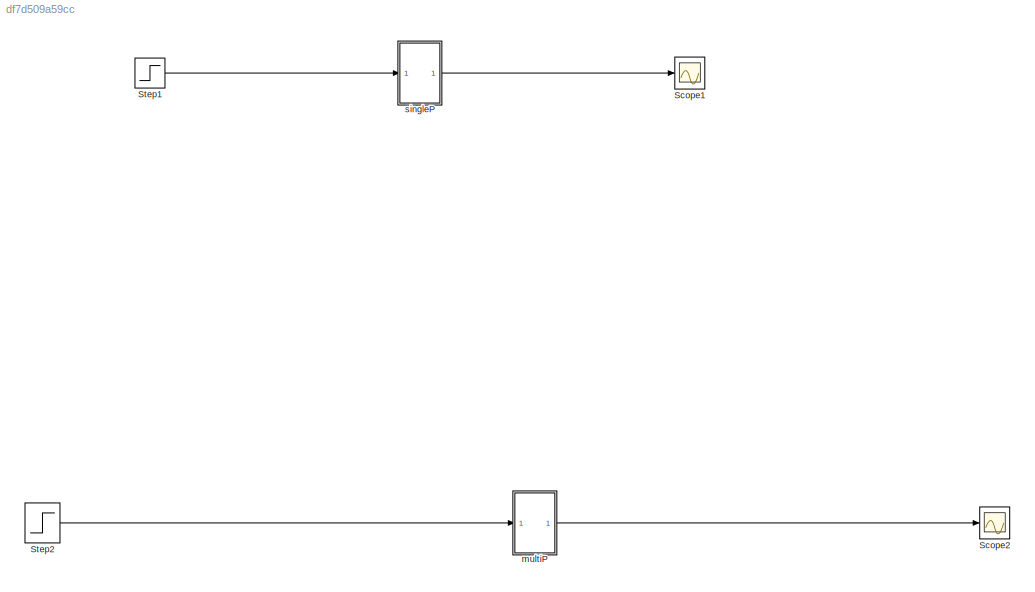
MODEL slx_df7d509a59cc
KIND model
CONFIG AbsTol = auto
CONFIG EnableMultiTasking = off
CONFIG FixedStep = auto
CONFIG MaxStep = auto
CONFIG MinStep = auto
CONFIG RelTol = 1e-3
CONFIG SampleTimeConstraint = Unconstrained
CONFIG SolverName = VariableStepAuto
CONFIG StartTime = 0.0
CONFIG StopTime = 10.0
BLOCK [Scope] Scope1
  Floating = off
  NumInputPorts = 1
  ScopeSpecificationString = Simulink.scopes.TimeScopeBlockCfg('CurrentConfiguration', extmgr.ConfigurationSet(extmgr.Configuration('Core','General UI',true),extmgr.Configuration('Core','Source UI',true),extmgr.Configuration('Sources','WiredSimulink',true,'DataLoggingVariableName','ScopeData2'),extmgr.Configuration('Visuals','Time Domain',true,'SerializedDisplays',{struct('MinYLimReal','-0.13505','MaxYLimReal','1.21541','YLab...<+1395ch>
BLOCK [Scope] Scope2
  Floating = off
  NumInputPorts = 1
  ScopeSpecificationString = Simulink.scopes.TimeScopeBlockCfg('CurrentConfiguration', extmgr.ConfigurationSet(extmgr.Configuration('Core','General UI',true),extmgr.Configuration('Core','Source UI',true),extmgr.Configuration('Sources','WiredSimulink',true,'DataLoggingVariableName','ScopeData1'),extmgr.Configuration('Visuals','Time Domain',true,'SerializedDisplays',{struct('MinYLimReal','-0.1452','MaxYLimReal','1.30677','YLabe...<+1392ch>
BLOCK [Step] Step1
  SampleTime = 0
BLOCK [Step] Step2
  SampleTime = 0
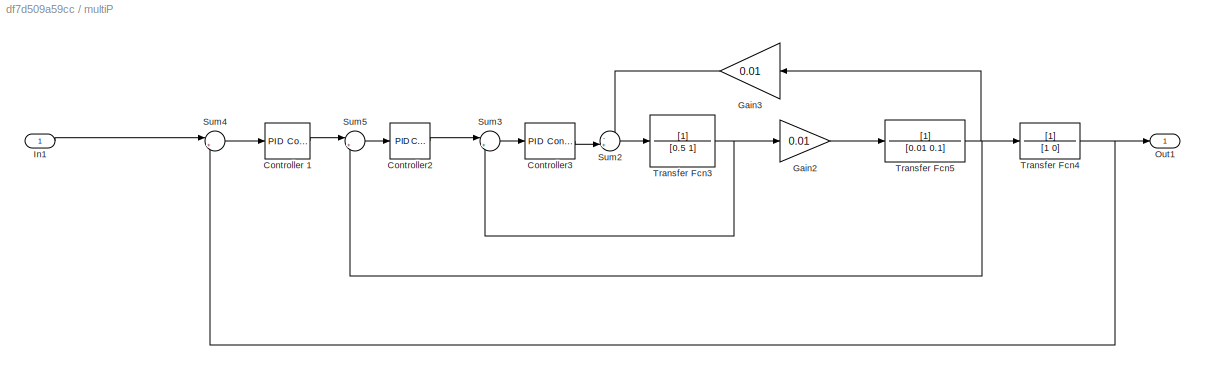
BLOCK [SubSystem] multiP
BLOCK [Reference] multiP/Controller 1  REF=slpidlib/PID Controller
  LibrarySourceBlock = simulink/Continuous/PID Controller
  SourceBlock = slpidlib/PID Controller
  SourceType = PID 1dof
BLOCK [Reference] multiP/Controller2  REF=slpidlib/PID Controller
  LibrarySourceBlock = simulink/Continuous/PID Controller
  SourceBlock = slpidlib/PID Controller
  SourceType = PID 1dof
BLOCK [Reference] multiP/Controller3  REF=slpidlib/PID Controller
  LibrarySourceBlock = simulink/Continuous/PID Controller
  SourceBlock = slpidlib/PID Controller
  SourceType = PID 1dof
BLOCK [Gain] multiP/Gain2
  Gain = 0.01
BLOCK [Gain] multiP/Gain3
  Gain = 0.01
BLOCK [Inport] multiP/In1
BLOCK [Outport] multiP/Out1
BLOCK [Sum] multiP/Sum2
  Inputs = -+|
BLOCK [Sum] multiP/Sum3
  Inputs = |+-
BLOCK [Sum] multiP/Sum4
  Inputs = |+-
BLOCK [Sum] multiP/Sum5
  Inputs = |+-
BLOCK [TransferFcn] multiP/Transfer Fcn3
  Denominator = [0.5 1]
BLOCK [TransferFcn] multiP/Transfer Fcn4
  Denominator = [1 0]
BLOCK [TransferFcn] multiP/Transfer Fcn5
  Denominator = [0.01 0.1]
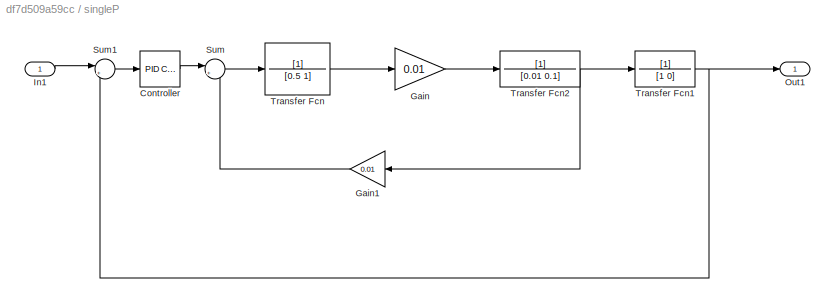
BLOCK [SubSystem] singleP
BLOCK [Reference] singleP/ Controller  REF=slpidlib/PID Controller
  LibrarySourceBlock = simulink/Continuous/PID Controller
  SourceBlock = slpidlib/PID Controller
  SourceType = PID 1dof
BLOCK [Gain] singleP/Gain
  Gain = 0.01
BLOCK [Gain] singleP/Gain1
  Gain = 0.01
BLOCK [Inport] singleP/In1
BLOCK [Outport] singleP/Out1
BLOCK [Sum] singleP/Sum
  Inputs = |+-
BLOCK [Sum] singleP/Sum1
  Inputs = |+-
BLOCK [TransferFcn] singleP/Transfer Fcn
  Denominator = [0.5 1]
BLOCK [TransferFcn] singleP/Transfer Fcn1
  Denominator = [1 0]
BLOCK [TransferFcn] singleP/Transfer Fcn2
  Denominator = [0.01 0.1]
LINE Step1:1 -> singleP:1
LINE Step2:1 -> multiP:1
LINE multiP/Controller 1:1 -> multiP/Sum5:1
LINE multiP/Controller2:1 -> multiP/Sum3:1
LINE multiP/Controller3:1 -> multiP/Sum2:2
LINE multiP/Gain2:1 -> multiP/Transfer Fcn5:1
LINE multiP/Gain3:1 -> multiP/Sum2:1
LINE multiP/In1:1 -> multiP/Sum4:1
LINE multiP/Sum2:1 -> multiP/Transfer Fcn3:1
LINE multiP/Sum3:1 -> multiP/Controller3:1
LINE multiP/Sum4:1 -> multiP/Controller 1:1
LINE multiP/Sum5:1 -> multiP/Controller2:1
NET multiP/Transfer Fcn3:1 -> multiP/Gain2:1, multiP/Sum3:2
NET multiP/Transfer Fcn4:1 -> multiP/Out1:1, multiP/Sum4:2
NET multiP/Transfer Fcn5:1 -> multiP/Gain3:1, multiP/Sum5:2, multiP/Transfer Fcn4:1
LINE multiP:1 -> Scope2:1
LINE singleP/ Controller:1 -> singleP/Sum:1
LINE singleP/Gain1:1 -> singleP/Sum:2
LINE singleP/Gain:1 -> singleP/Transfer Fcn2:1
LINE singleP/In1:1 -> singleP/Sum1:1
LINE singleP/Sum1:1 -> singleP/ Controller:1
LINE singleP/Sum:1 -> singleP/Transfer Fcn:1
NET singleP/Transfer Fcn1:1 -> singleP/Out1:1, singleP/Sum1:2
NET singleP/Transfer Fcn2:1 -> singleP/Gain1:1, singleP/Transfer Fcn1:1
LINE singleP/Transfer Fcn:1 -> singleP/Gain:1
LINE singleP:1 -> Scope1:1
note: NET lines group one-source signal fan-out (src -> all destinations, sorted); 1:1 wires keep LINE
